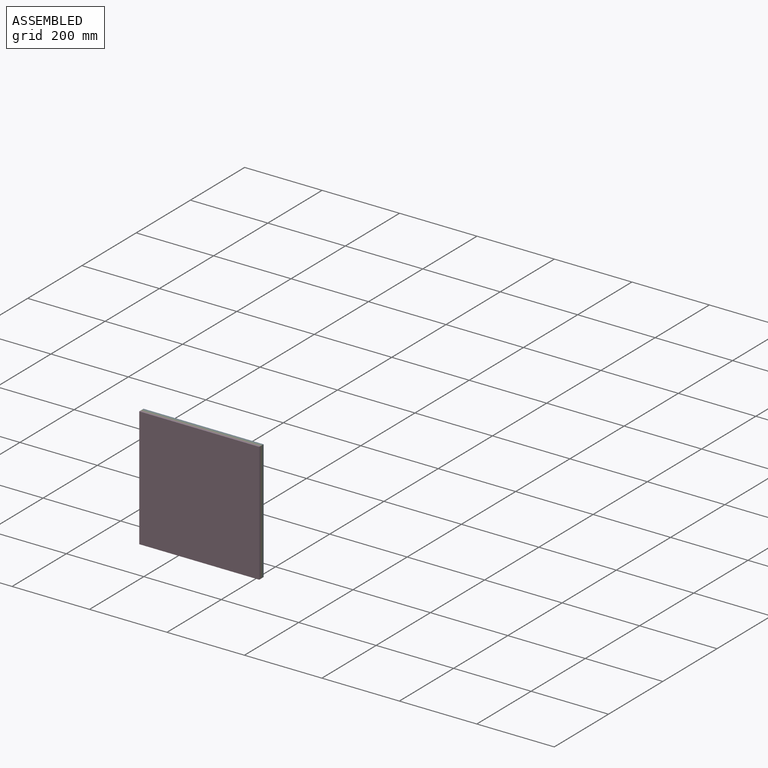
[diagram: assembled view]
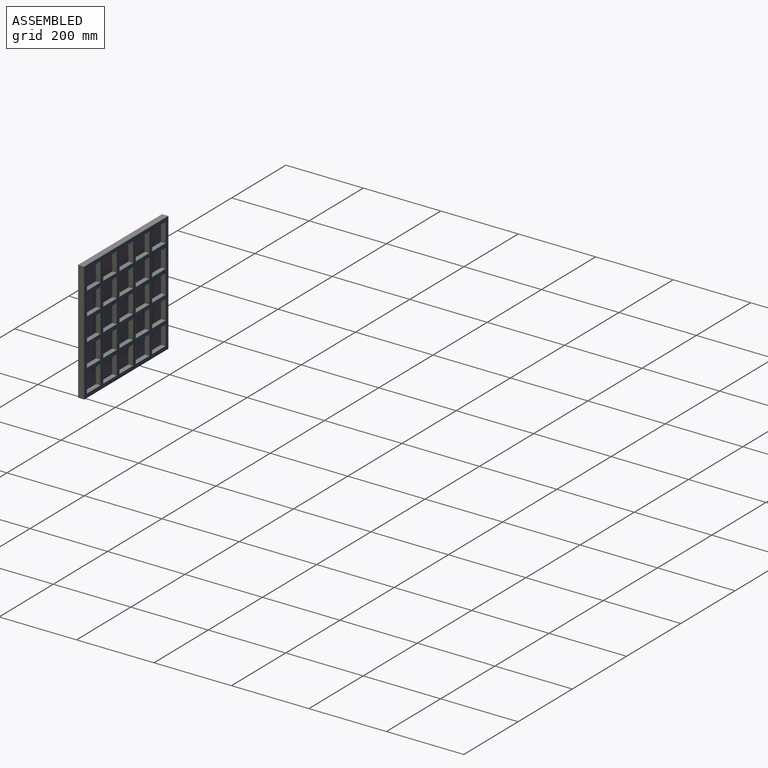
[diagram: assembled view, second angle]
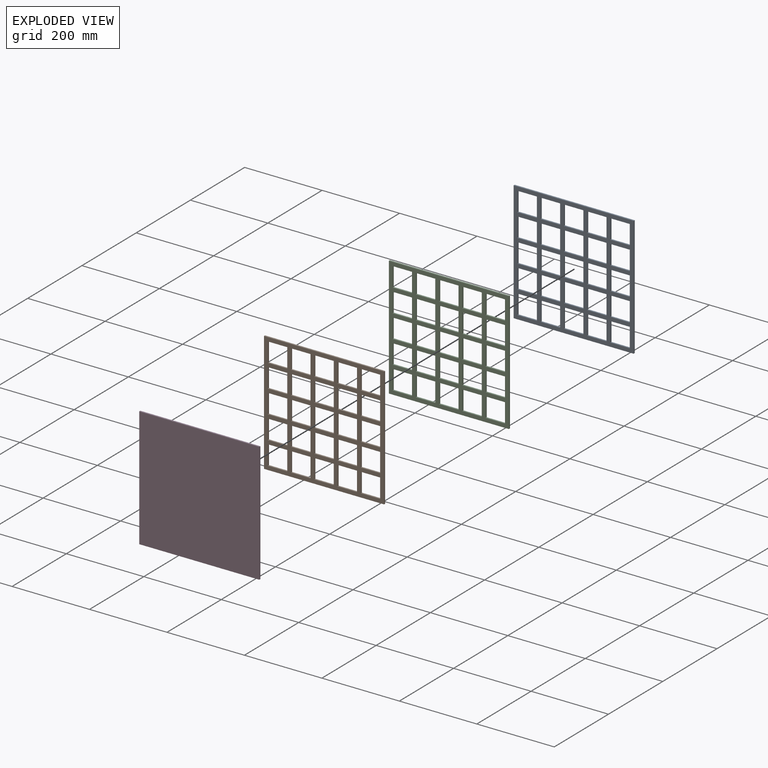
[diagram: exploded view]
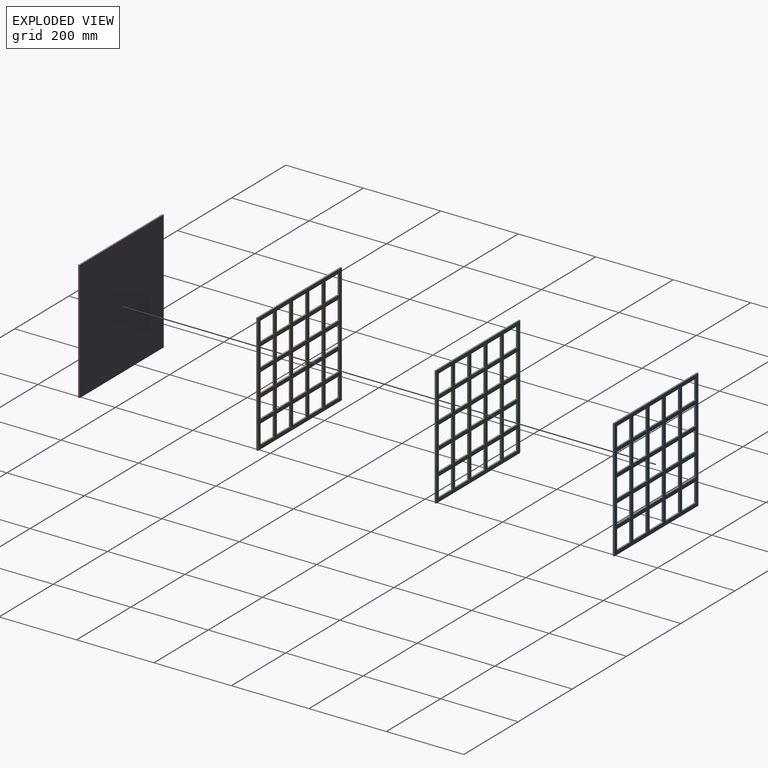
[diagram: exploded view, second angle]
ASSEMBLY  parts=4 mates=3
PART A: 106 faces, bbox 310x4x310 mm
  f0: plane 310x4mm, normal (0,0,-1), area 1240mm2, adj f1,f103,f104,f105
  f1: plane 310x4mm, normal (1,0,0), area 1240mm2, adj f0,f2,f104,f105
  f2: plane 310x4mm, normal (0,0,1), area 1240mm2, adj f1,f103,f104,f105
  f3: plane 50x4mm, normal (-1,0,0), area 200mm2, adj f4,f78,f104,f105
  f4: plane 50x4mm, normal (0,0,1), area 200mm2, adj f3,f5,f104,f105
  f5: plane 50x4mm, normal (1,0,0), area 200mm2, adj f4,f78,f104,f105
  f6: plane 50x4mm, normal (1,0,0), area 200mm2, adj f7,f79,f104,f105
  f7: plane 50x4mm, normal (0,0,-1), area 200mm2, adj f6,f8,f104,f105
  f8: plane 50x4mm, normal (-1,0,0), area 200mm2, adj f7,f79,f104,f105
  f9: plane 50x4mm, normal (-1,0,0), area 200mm2, adj f10,f80,f104,f105
  f10: plane 50x4mm, normal (0,0,1), area 200mm2, adj f9,f11,f104,f105
  f11: plane 50x4mm, normal (1,0,0), area 200mm2, adj f10,f80,f104,f105
  f12: plane 50x4mm, normal (-1,0,0), area 200mm2, adj f13,f81,f104,f105
  f13: plane 50x4mm, normal (0,0,1), area 200mm2, adj f12,f14,f104,f105
  f14: plane 50x4mm, normal (1,0,0), area 200mm2, adj f13,f81,f104,f105
  f15: plane 50x4mm, normal (0,0,1), area 200mm2, adj f16,f82,f104,f105
  f16: plane 50x4mm, normal (1,0,0), area 200mm2, adj f15,f17,f104,f105
  f17: plane 50x4mm, normal (0,0,-1), area 200mm2, adj f16,f82,f104,f105
  f18: plane 50x4mm, normal (-1,0,0), area 200mm2, adj f19,f83,f104,f105
  f19: plane 50x4mm, normal (0,0,1), area 200mm2, adj f18,f20,f104,f105
  f20: plane 50x4mm, normal (1,0,0), area 200mm2, adj f19,f83,f104,f105
  f21: plane 50x4mm, normal (-1,0,0), area 200mm2, adj f22,f84,f104,f105
  f22: plane 50x4mm, normal (0,0,1), area 200mm2, adj f21,f23,f104,f105
  f23: plane 50x4mm, normal (1,0,0), area 200mm2, adj f22,f84,f104,f105
  f24: plane 50x4mm, normal (-1,0,0), area 200mm2, adj f25,f85,f104,f105
  f25: plane 50x4mm, normal (0,0,1), area 200mm2, adj f24,f26,f104,f105
  f26: plane 50x4mm, normal (1,0,0), area 200mm2, adj f25,f85,f104,f105
  f27: plane 50x4mm, normal (0,0,1), area 200mm2, adj f28,f86,f104,f105
  f28: plane 50x4mm, normal (1,0,0), area 200mm2, adj f27,f29,f104,f105
  f29: plane 50x4mm, normal (0,0,-1), area 200mm2, adj f28,f86,f104,f105
  f30: plane 50x4mm, normal (0,0,-1), area 200mm2, adj f31,f87,f104,f105
  f31: plane 50x4mm, normal (-1,0,0), area 200mm2, adj f30,f32,f104,f105
  f32: plane 50x4mm, normal (0,0,1), area 200mm2, adj f31,f87,f104,f105
  f33: plane 50x4mm, normal (-1,0,0), area 200mm2, adj f34,f88,f104,f105
  f34: plane 50x4mm, normal (0,0,1), area 200mm2, adj f33,f35,f104,f105
  f35: plane 50x4mm, normal (1,0,0), area 200mm2, adj f34,f88,f104,f105
  f36: plane 50x4mm, normal (-1,0,0), area 200mm2, adj f37,f89,f104,f105
  f37: plane 50x4mm, normal (0,0,1), area 200mm2, adj f36,f38,f104,f105
  f38: plane 50x4mm, normal (1,0,0), area 200mm2, adj f37,f89,f104,f105
  f39: plane 50x4mm, normal (-1,0,0), area 200mm2, adj f40,f90,f104,f105
  f40: plane 50x4mm, normal (0,0,1), area 200mm2, adj f39,f41,f104,f105
  f41: plane 50x4mm, normal (1,0,0), area 200mm2, adj f40,f90,f104,f105
  f42: plane 50x4mm, normal (-1,0,0), area 200mm2, adj f43,f91,f104,f105
  f43: plane 50x4mm, normal (0,0,1), area 200mm2, adj f42,f44,f104,f105
  f44: plane 50x4mm, normal (1,0,0), area 200mm2, adj f43,f91,f104,f105
  f45: plane 50x4mm, normal (-1,0,0), area 200mm2, adj f46,f92,f104,f105
  f46: plane 50x4mm, normal (0,0,1), area 200mm2, adj f45,f47,f104,f105
  f47: plane 50x4mm, normal (1,0,0), area 200mm2, adj f46,f92,f104,f105
  f48: plane 50x4mm, normal (0,0,1), area 200mm2, adj f49,f93,f104,f105
  f49: plane 50x4mm, normal (1,0,0), area 200mm2, adj f48,f50,f104,f105
  f50: plane 50x4mm, normal (0,0,-1), area 200mm2, adj f49,f93,f104,f105
  f51: plane 50x4mm, normal (0,0,-1), area 200mm2, adj f52,f94,f104,f105
  f52: plane 50x4mm, normal (-1,0,0), area 200mm2, adj f51,f53,f104,f105
  f53: plane 50x4mm, normal (0,0,1), area 200mm2, adj f52,f94,f104,f105
  f54: plane 50x4mm, normal (1,0,0), area 200mm2, adj f55,f95,f104,f105
  f55: plane 50x4mm, normal (0,0,-1), area 200mm2, adj f54,f56,f104,f105
  f56: plane 50x4mm, normal (-1,0,0), area 200mm2, adj f55,f95,f104,f105
  f57: plane 50x4mm, normal (-1,0,0), area 200mm2, adj f58,f96,f104,f105
  f58: plane 50x4mm, normal (0,0,1), area 200mm2, adj f57,f59,f104,f105
  f59: plane 50x4mm, normal (1,0,0), area 200mm2, adj f58,f96,f104,f105
  f60: plane 50x4mm, normal (-1,0,0), area 200mm2, adj f61,f97,f104,f105
  f61: plane 50x4mm, normal (0,0,1), area 200mm2, adj f60,f62,f104,f105
  f62: plane 50x4mm, normal (1,0,0), area 200mm2, adj f61,f97,f104,f105
  f63: plane 50x4mm, normal (1,0,0), area 200mm2, adj f64,f98,f104,f105
  f64: plane 50x4mm, normal (0,0,-1), area 200mm2, adj f63,f65,f104,f105
  f65: plane 50x4mm, normal (-1,0,0), area 200mm2, adj f64,f98,f104,f105
  f66: plane 50x4mm, normal (1,0,0), area 200mm2, adj f67,f99,f104,f105
  f67: plane 50x4mm, normal (0,0,-1), area 200mm2, adj f66,f68,f104,f105
  f68: plane 50x4mm, normal (-1,0,0), area 200mm2, adj f67,f99,f104,f105
  f69: plane 50x4mm, normal (-1,0,0), area 200mm2, adj f70,f100,f104,f105
  f70: plane 50x4mm, normal (0,0,1), area 200mm2, adj f69,f71,f104,f105
  f71: plane 50x4mm, normal (1,0,0), area 200mm2, adj f70,f100,f104,f105
  f72: plane 50x4mm, normal (1,0,0), area 200mm2, adj f73,f101,f104,f105
  f73: plane 50x4mm, normal (0,0,-1), area 200mm2, adj f72,f74,f104,f105
  f74: plane 50x4mm, normal (-1,0,0), area 200mm2, adj f73,f101,f104,f105
  f75: plane 50x4mm, normal (-1,0,0), area 200mm2, adj f76,f102,f104,f105
  f76: plane 50x4mm, normal (0,0,1), area 200mm2, adj f75,f77,f104,f105
  f77: plane 50x4mm, normal (1,0,0), area 200mm2, adj f76,f102,f104,f105
  f78: plane 50x4mm, normal (0,0,-1), area 200mm2, adj f3,f5,f104,f105
  f79: plane 50x4mm, normal (0,0,1), area 200mm2, adj f6,f8,f104,f105
  f80: plane 50x4mm, normal (0,0,-1), area 200mm2, adj f9,f11,f104,f105
  f81: plane 50x4mm, normal (0,0,-1), area 200mm2, adj f12,f14,f104,f105
  f82: plane 50x4mm, normal (-1,0,0), area 200mm2, adj f15,f17,f104,f105
  f83: plane 50x4mm, normal (0,0,-1), area 200mm2, adj f18,f20,f104,f105
  f84: plane 50x4mm, normal (0,0,-1), area 200mm2, adj f21,f23,f104,f105
  f85: plane 50x4mm, normal (0,0,-1), area 200mm2, adj f24,f26,f104,f105
  f86: plane 50x4mm, normal (-1,0,0), area 200mm2, adj f27,f29,f104,f105
  f87: plane 50x4mm, normal (1,0,0), area 200mm2, adj f30,f32,f104,f105
  f88: plane 50x4mm, normal (0,0,-1), area 200mm2, adj f33,f35,f104,f105
  f89: plane 50x4mm, normal (0,0,-1), area 200mm2, adj f36,f38,f104,f105
  f90: plane 50x4mm, normal (0,0,-1), area 200mm2, adj f39,f41,f104,f105
  f91: plane 50x4mm, normal (0,0,-1), area 200mm2, adj f42,f44,f104,f105
  f92: plane 50x4mm, normal (0,0,-1), area 200mm2, adj f45,f47,f104,f105
  f93: plane 50x4mm, normal (-1,0,0), area 200mm2, adj f48,f50,f104,f105
  f94: plane 50x4mm, normal (1,0,0), area 200mm2, adj f51,f53,f104,f105
  f95: plane 50x4mm, normal (0,0,1), area 200mm2, adj f54,f56,f104,f105
  f96: plane 50x4mm, normal (0,0,-1), area 200mm2, adj f57,f59,f104,f105
  f97: plane 50x4mm, normal (0,0,-1), area 200mm2, adj f60,f62,f104,f105
  f98: plane 50x4mm, normal (0,0,1), area 200mm2, adj f63,f65,f104,f105
  f99: plane 50x4mm, normal (0,0,1), area 200mm2, adj f66,f68,f104,f105
  f100: plane 50x4mm, normal (0,0,-1), area 200mm2, adj f69,f71,f104,f105
  f101: plane 50x4mm, normal (0,0,1), area 200mm2, adj f72,f74,f104,f105
  f102: plane 50x4mm, normal (0,0,-1), area 200mm2, adj f75,f77,f104,f105
  f103: plane 310x4mm, normal (-1,0,0), area 1240mm2, adj f0,f2,f104,f105
  f104: plane 310x310mm, normal (0,-1,0), area 33600mm2, adj f0,f1,f2,f3,f4,f5,f6,f7
  f105: plane 310x310mm, normal (0,1,0), area 33600mm2, adj f0,f1,f2,f3,f4,f5,f6,f7
PART B: same geometry as A
PART C: same geometry as A
PART D: 6 faces, bbox 310x4x310 mm
  f0: plane 310x4mm, normal (0,0,-1), area 1240mm2, adj f1,f3,f4,f5
  f1: plane 310x4mm, normal (1,0,0), area 1240mm2, adj f0,f2,f4,f5
  f2: plane 310x4mm, normal (0,0,1), area 1240mm2, adj f1,f3,f4,f5
  f3: plane 310x4mm, normal (-1,0,0), area 1240mm2, adj f0,f2,f4,f5
  f4: plane 310x310mm, normal (0,-1,0), area 96100mm2, adj f0,f1,f2,f3
  f5: plane 310x310mm, normal (0,1,0), area 96100mm2, adj f0,f1,f2,f3
PLACE A t=(-137.89,-68.18,-9.86)mm
PLACE B t=(-137.89,-76.18,-9.86)mm
PLACE C t=(-137.89,-72.18,-9.86)mm
PLACE D t=(-137.89,-80.18,-9.86)mm
MATE fastened B.f104 <-> D.f5  axis (0,-1,0) through (17.11,-80.18,145.14)mm
MATE fastened B.f105 <-> C.f104  axis (0,1,0) through (17.11,-76.18,145.14)mm
MATE fastened A.f104 <-> C.f105  axis (0,-1,0) through (17.11,-72.18,145.14)mm
